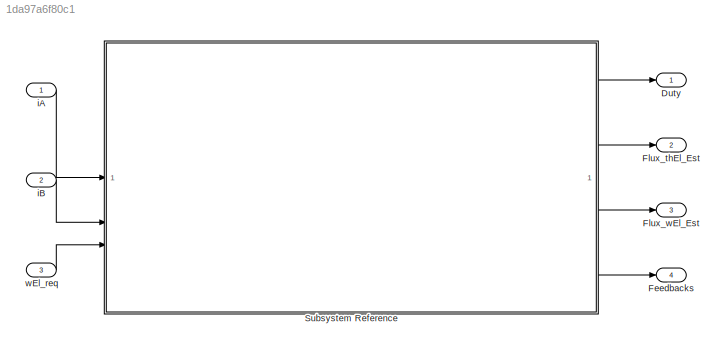
MODEL slx_1da97a6f80c1
KIND model
CONFIG AbsTol = auto
CONFIG EnableMultiTasking = off
CONFIG FixedStep = Tctr
CONFIG InitFcn = %mbd_s32k_consistency_checks(bdroot(gcs));
CONFIG MaxStep = auto
CONFIG MinStep = auto
CONFIG RelTol = 1e-3
CONFIG SampleTimeConstraint = Unconstrained
CONFIG SolverName = FixedStepDiscrete
CONFIG StartTime = 0.0
CONFIG StopTime = 10.0
BLOCK [Outport] Duty
  OutDataTypeStr = single
  PortDimensions = 3
BLOCK [Outport] Feedbacks
  OutDataTypeStr = single
  Port = 4
  PortDimensions = 8
BLOCK [Outport] Flux_thEl_Est
  OutDataTypeStr = single
  Port = 2
  PortDimensions = 1
BLOCK [Outport] Flux_wEl_Est
  OutDataTypeStr = single
  Port = 3
  PortDimensions = 1
BLOCK [SubSystem] Subsystem Reference
  ReferencedSubsystem = FOC_Sub_CoreAlgoithm
BLOCK [Inport] iA
  OutDataTypeStr = single
  PortDimensions = 1
BLOCK [Inport] iB
  OutDataTypeStr = single
  Port = 2
  PortDimensions = 1
BLOCK [Inport] wEl_req
  OutDataTypeStr = single
  Port = 3
  PortDimensions = 1
LINE Subsystem Reference:1 -> Duty:1
LINE Subsystem Reference:2 -> Flux_thEl_Est:1
LINE Subsystem Reference:3 -> Flux_wEl_Est:1
LINE Subsystem Reference:4 -> Feedbacks:1
LINE iA:1 -> Subsystem Reference:1
LINE iB:1 -> Subsystem Reference:2
LINE wEl_req:1 -> Subsystem Reference:3
